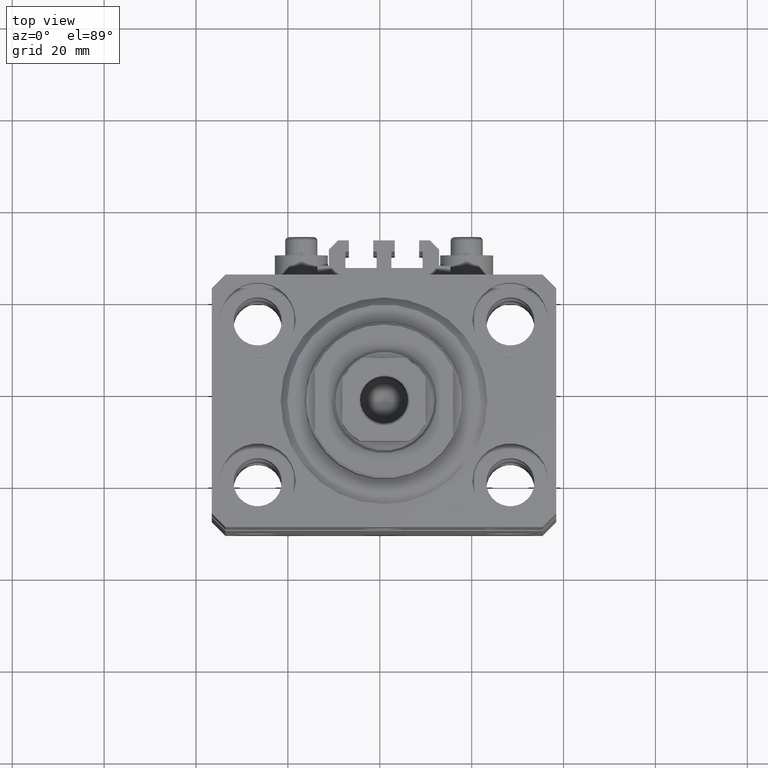
[diagram: clean part render]
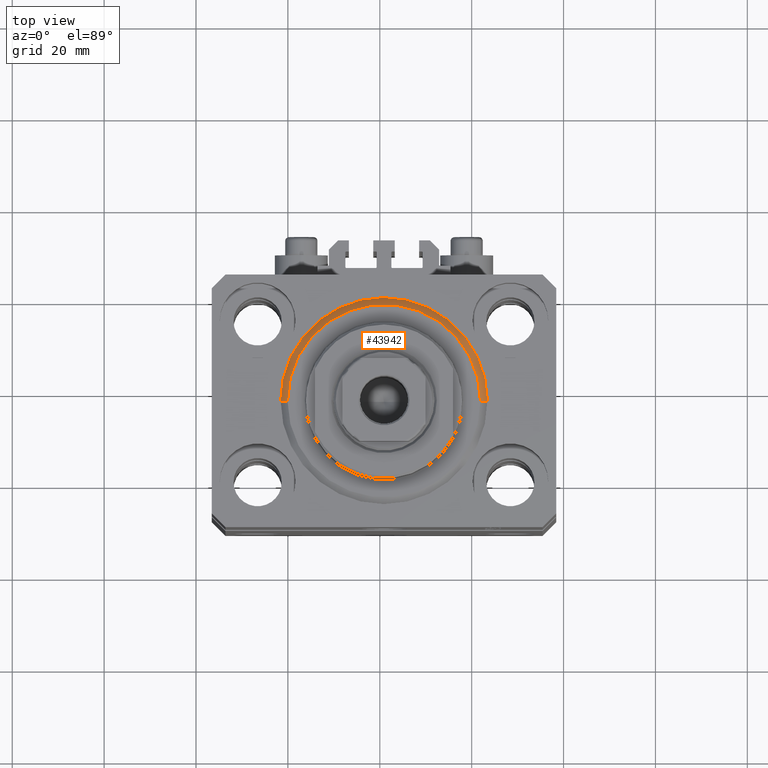
[diagram: same view with one face highlighted and labeled with its STEP entity id]
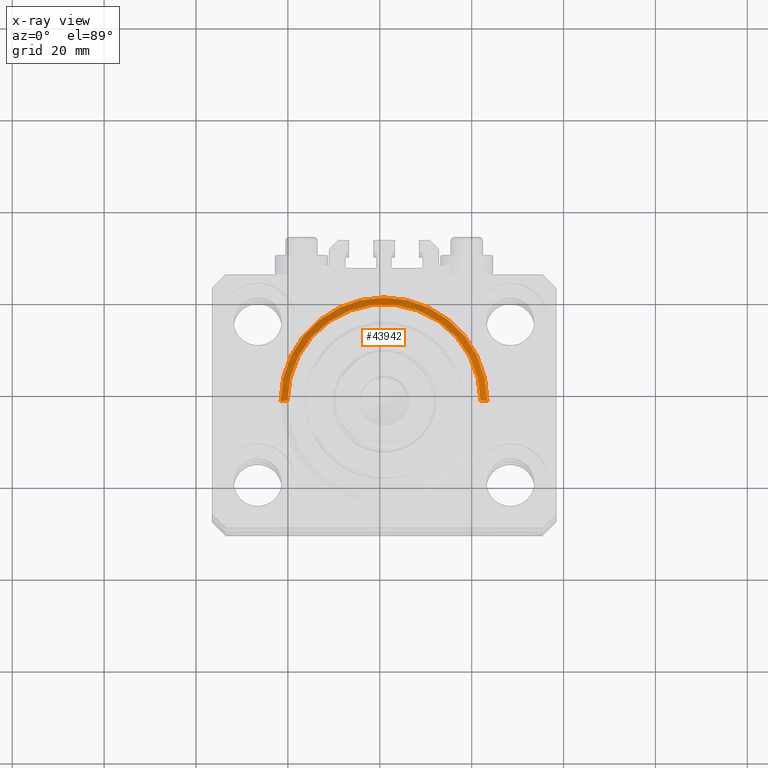
[diagram: x-ray of the same camera — body ghosted, the highlighted face saturated]
A machine part, top view. The second image highlights one B-rep face of the part: STEP entity #43942.
The next image is the same camera in x-ray: the body ghosted, the highlighted face saturated — about 0% of this face is hidden behind the body in this view.
In plain terms, the highlighted conical surface has half-angle 45 deg.
Its self-contained STEP definition (entity closure, byte-faithful):
#1379 = AXIS2_PLACEMENT_3D ( 'NONE', #27435, #17004, #13135 ) ;
#4423 = EDGE_CURVE ( 'NONE', #8612, #42500, #23217, .T. ) ;
#5744 = CARTESIAN_POINT ( 'NONE',  ( 22.50000000000000355, 0.000000000000000000, 1.500000000000001332 ) ) ;
#8612 = VERTEX_POINT ( 'NONE', #24640 ) ;
#8985 = DIRECTION ( 'NONE',  ( 1.000000000000000000, 0.000000000000000000, 0.000000000000000000 ) ) ;
#9074 = CONICAL_SURFACE ( 'NONE', #1379, 22.50000000000000355, 0.7853981633974517207 ) ;
#9685 = AXIS2_PLACEMENT_3D ( 'NONE', #20806, #46719, #23666 ) ;
#13135 = DIRECTION ( 'NONE',  ( 1.000000000000000000, 0.000000000000000000, 0.000000000000000000 ) ) ;
#14338 = LINE ( 'NONE', #40761, #39091 ) ;
#17004 = DIRECTION ( 'NONE',  ( -0.000000000000000000, -0.000000000000000000, 1.000000000000000000 ) ) ;
#17029 = ORIENTED_EDGE ( 'NONE', *, *, #36657, .F. ) ;
#19062 = VECTOR ( 'NONE', #31428, 1000.000000000000114 ) ;
#20517 = EDGE_CURVE ( 'NONE', #35124, #8612, #35229, .T. ) ;
#20806 = CARTESIAN_POINT ( 'NONE',  ( 0.000000000000000000, 0.000000000000000000, 0.000000000000000000 ) ) ;
#21209 = CARTESIAN_POINT ( 'NONE',  ( -20.99999999999998934, 2.663606788145492628E-15, 0.000000000000000000 ) ) ;
#23217 = LINE ( 'NONE', #5744, #19062 ) ;
#23666 = DIRECTION ( 'NONE',  ( 1.000000000000000000, 0.000000000000000000, 0.000000000000000000 ) ) ;
#23800 = FACE_OUTER_BOUND ( 'NONE', #41062, .T. ) ;
#24640 = CARTESIAN_POINT ( 'NONE',  ( 20.99999999999998934, 0.000000000000000000, 0.000000000000000000 ) ) ;
#25941 = ORIENTED_EDGE ( 'NONE', *, *, #4423, .F. ) ;
#27140 = EDGE_CURVE ( 'NONE', #35124, #42464, #14338, .T. ) ;
#27435 = CARTESIAN_POINT ( 'NONE',  ( 0.000000000000000000, 0.000000000000000000, 1.500000000000001332 ) ) ;
#30890 = CARTESIAN_POINT ( 'NONE',  ( 22.50000000000000355, 2.755455298081545172E-15, 1.500000000000001332 ) ) ;
#31428 = DIRECTION ( 'NONE',  ( 0.7071067811865500152, 0.000000000000000000, 0.7071067811865451302 ) ) ;
#31502 = ORIENTED_EDGE ( 'NONE', *, *, #27140, .T. ) ;
#35124 = VERTEX_POINT ( 'NONE', #21209 ) ;
#35229 = CIRCLE ( 'NONE', #9685, 20.99999999999998934 ) ;
#36301 = AXIS2_PLACEMENT_3D ( 'NONE', #45828, #46308, #8985 ) ;
#36657 = EDGE_CURVE ( 'NONE', #42500, #42464, #47153, .T. ) ;
#39091 = VECTOR ( 'NONE', #40522, 1000.000000000000114 ) ;
#40522 = DIRECTION ( 'NONE',  ( -0.7071067811865500152, 8.659560562354963673E-17, 0.7071067811865451302 ) ) ;
#40761 = CARTESIAN_POINT ( 'NONE',  ( -22.50000000000000355, 2.755455298081545172E-15, 1.500000000000001332 ) ) ;
#41008 = ORIENTED_EDGE ( 'NONE', *, *, #20517, .F. ) ;
#41062 = EDGE_LOOP ( 'NONE', ( #41008, #31502, #17029, #25941 ) ) ;
#41325 = CARTESIAN_POINT ( 'NONE',  ( -22.50000000000000355, 0.000000000000000000, 1.500000000000001332 ) ) ;
#42464 = VERTEX_POINT ( 'NONE', #41325 ) ;
#42500 = VERTEX_POINT ( 'NONE', #30890 ) ;
#43942 = ADVANCED_FACE ( 'NONE', ( #23800 ), #9074, .T. ) ;
#45828 = CARTESIAN_POINT ( 'NONE',  ( 0.000000000000000000, 0.000000000000000000, 1.500000000000001332 ) ) ;
#46308 = DIRECTION ( 'NONE',  ( -0.000000000000000000, -0.000000000000000000, 1.000000000000000000 ) ) ;
#46719 = DIRECTION ( 'NONE',  ( -0.000000000000000000, -0.000000000000000000, -1.000000000000000000 ) ) ;
#47153 = CIRCLE ( 'NONE', #36301, 22.50000000000000355 ) ;